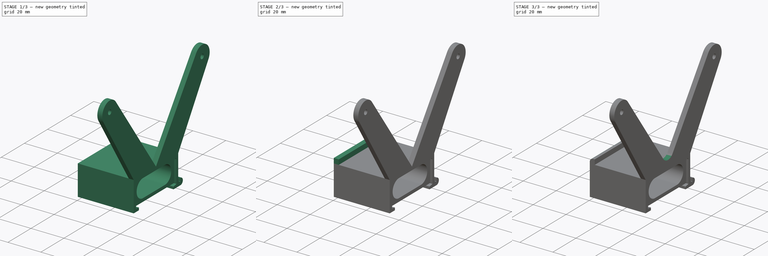
[diagram: build sequence overview — one tinted view per stage of 3, left to right]
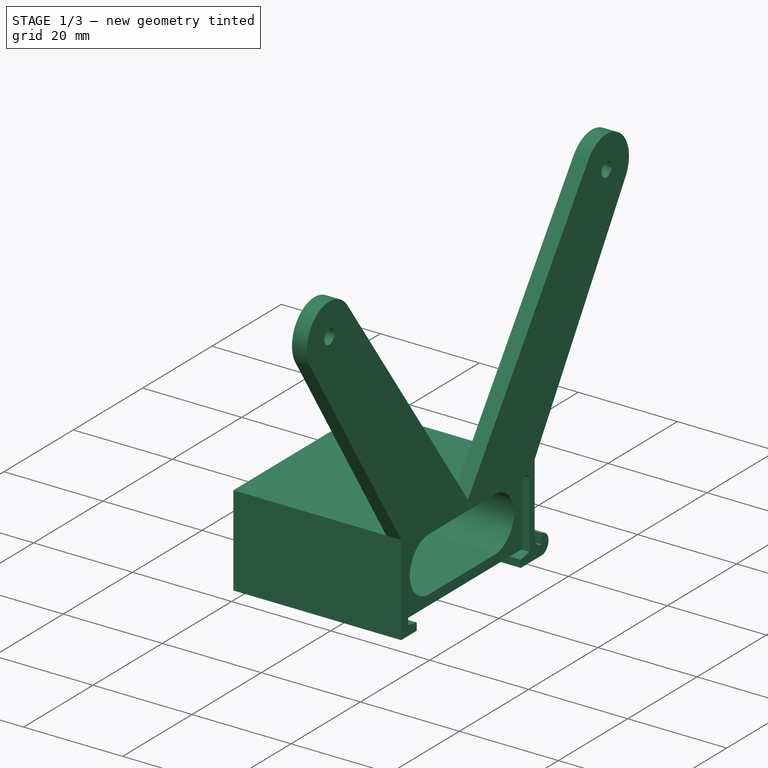
[diagram: stage 1 of 3 — iso view after this stage's code; geometry added in this stage tinted green]
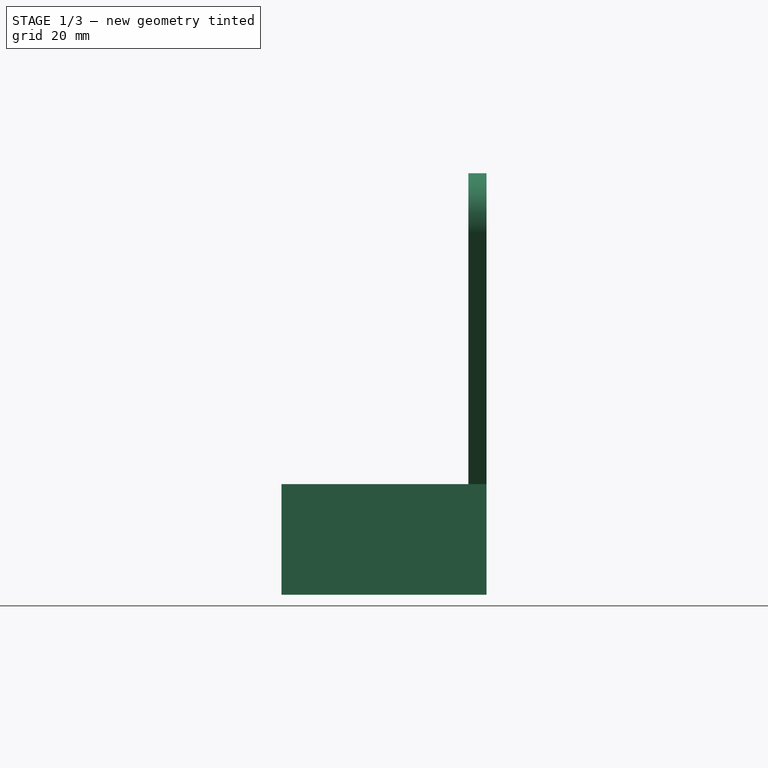
[diagram: stage 1 of 3 — front view after this stage's code; geometry added in this stage tinted green]
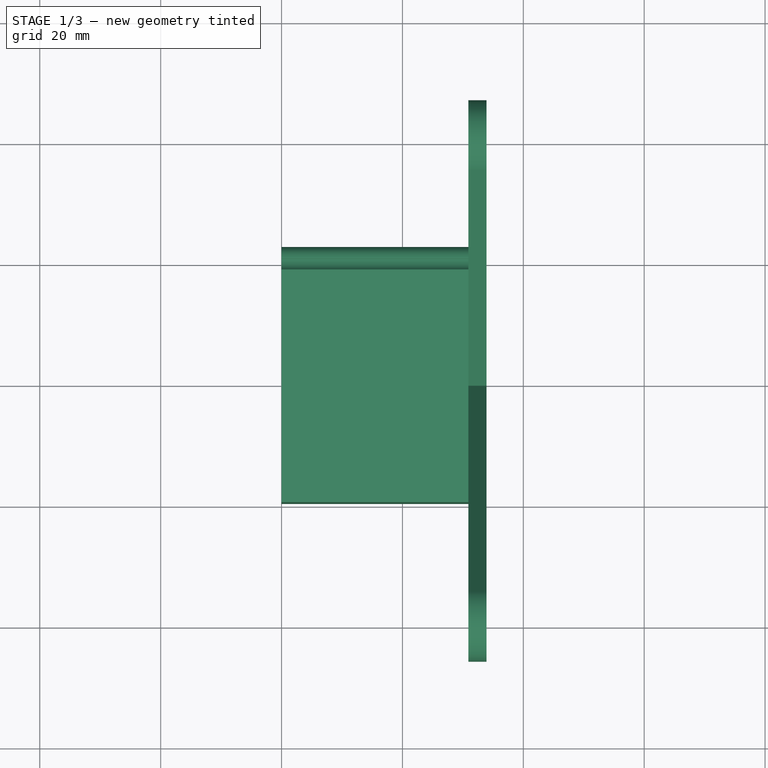
[diagram: stage 1 of 3 — top view after this stage's code; geometry added in this stage tinted green]
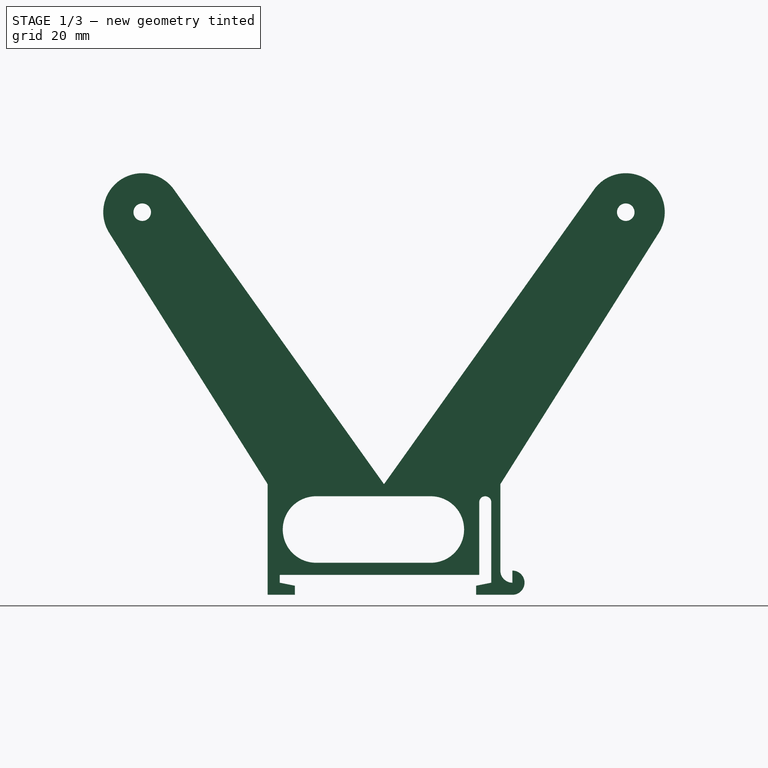
[diagram: stage 1 of 3 — right view after this stage's code; geometry added in this stage tinted green]
FCSTD DOCUMENT  (FreeCAD 0.19R24276 (Git))
Label: DIN Rail holder
License: All rights reserved
LicenseURL: http://en.wikipedia.org/wiki/All_rights_reserved
objects: Sketcher::SketchObject×4, PartDesign::Pad×2, PartDesign::Fillet×2, Spreadsheet::Sheet×1, PartDesign::Pocket×1, PartDesign::Body×1
note: 15 computed .brp shape members not serialized (recipe doc carries the construction recipe); baked Part::Feature solids carry a one-line shape summary decoded from their .brp

FEATURE [Sketcher::SketchObject] Sketch  label="DIN Rail 35"
  FullyConstrained = true
  MapMode = 5
  Placement = pos=(0,0,0) rot=(0.57735,0.57735,0.57735;2.0944rad)
  Support = -> [YZ_Plane]
  sketch-geometry (9):
    g0: LineSegment StartX=-17.5 StartY=0 StartZ=0 EndX=17.5 EndY=0 EndZ=0
    g1: LineSegment StartX=17.5 StartY=0 StartZ=0 EndX=17.5 EndY=-1.5 EndZ=0
    g2: LineSegment StartX=17.5 StartY=-1.5 StartZ=0 EndX=13.5 EndY=-1.5 EndZ=0
    g3: LineSegment StartX=13.5 StartY=-1.5 StartZ=0 EndX=13.5 EndY=-7.5 EndZ=0
    g4: LineSegment StartX=13.5 StartY=-7.5 StartZ=0 EndX=-13.5 EndY=-7.5 EndZ=0
    g5: LineSegment StartX=-13.5 StartY=-7.5 StartZ=0 EndX=-13.5 EndY=-1.5 EndZ=0
    g6: LineSegment StartX=-13.5 StartY=-1.5 StartZ=0 EndX=-17.5 EndY=-1.5 EndZ=0
    g7: LineSegment StartX=-17.5 StartY=-1.5 StartZ=0 EndX=-17.5 EndY=0 EndZ=0
    g8: GeomPoint X=0 Y=0 Z=0
  constraints (24):
    c: Coincident(g0,g1)
    c: Coincident(g1,g2)
    c: Coincident(g2,g3)
    c: Coincident(g3,g4)
    c: Coincident(g4,g5)
    c: Vertical(g5)
    c: Coincident(g5,g6)
    c: Coincident(g6,g7)
    c: Coincident(g7,g0)
    c: Horizontal(g0)
    c: Horizontal(g2)
    c: Horizontal(g6)
    c: Horizontal(g4)
    c: Vertical(g1)
    c: Vertical(g7)
    c: Vertical(g3)
    c: DistanceX(g0,g0) = 35
    c: DistanceX(g4,g4) = 27
    c: DistanceY(g7,g7) = 1.5
    c: Equal(g7,g1)
    c: Equal(g2,g6)
    c: DistanceY(g3,g0) = 7.5
    c: Symmetric(g0,g0,g8)
    c: Coincident(g8,g-1)
FEATURE [Spreadsheet::Sheet] Spreadsheet
  cells = D1=Routerboard 750; E1=HT813; A2=Device thickness; B2(DeviceThickness)=27.5; D2=27.5; E2=27.5; A3=DeviceLipWidth; B3(DeviceLipWidth)=3; D3=3; E3=3; A4=DeviceLipHeight; B4(DeviceLipHeight)=3; D4=4; E4=4; A6=SUPPORT ARM; A7=Support arm thickness; B7(ArmThickness)=3; D7=4; E7=4; A8=PinDiameter; B8(PinDiameter)=2.9; C8=4.6 for M3x4x5 insert nut, 2.5 to 2.9 to directly screw in M3; D8=4.6; E8=2.9; A12=PinFromEdge; B12(PinFromEdge)=45; C12=Distance from rear face to center of pins; D12=45; E12=45; A13=PinDistance; B13(PinDistance)=80; C13=Distance between the pins; D13=70; E13=80; A15=Device thickness plus wiggle; B15(DeviceThicknessPlus)==DeviceThickness + 0.4; C15=0.4 mm wiggle as PLA seems to always be a little bigger than expected; A16=Width; B16(Width)==DeviceThicknessPlus + ArmThickness + DeviceLipWidth
FEATURE [Sketcher::SketchObject] Sketch001  label="Arms"
  FullyConstrained = true
  MapMode = 5
  Placement = pos=(0,0,0) rot=(0.57735,0.57735,0.57735;2.0944rad)
  Support = -> [YZ_Plane]
  expr: Constraints[69] = <<Spreadsheet>>.PinDistance
  expr: Constraints[70] = <<Spreadsheet>>.PinFromEdge
  expr: Constraints[78] = <<Spreadsheet>>.PinDiameter + 10
  expr: Constraints[89] = <<Spreadsheet>>.PinDiameter
  sketch-geometry (39):
    g0: LineSegment StartX=-15 StartY=-3.3 StartZ=0 EndX=-19.5 EndY=-3.3 EndZ=0
    g1: LineSegment StartX=-19.5 StartY=-3.3 StartZ=0 EndX=-19.5 EndY=15 EndZ=0
    g2: LineSegment StartX=19 StartY=15 StartZ=0 EndX=19 EndY=0.7 EndZ=0
    g3: LineSegment StartX=21 StartY=-1.3 StartZ=0 EndX=21 EndY=0.7 EndZ=0
    g4: LineSegment StartX=21 StartY=-3.3 StartZ=0 EndX=15 EndY=-3.3 EndZ=0
    g5: LineSegment StartX=15 StartY=-3.3 StartZ=0 EndX=15 EndY=-1.8 EndZ=0
    g6: LineSegment StartX=15 StartY=-1.8 StartZ=0 EndX=17.5 EndY=-1.3 EndZ=0
    g7: LineSegment StartX=17.5 StartY=-1.3 StartZ=0 EndX=17.5 EndY=0 EndZ=0
    g8: LineSegment StartX=-17.5 StartY=0 StartZ=0 EndX=-17.5 EndY=-1.3 EndZ=0
    g9: LineSegment StartX=-17.5 StartY=-1.3 StartZ=0 EndX=-15 EndY=-1.8 EndZ=0
    g10: LineSegment StartX=-15 StartY=-1.8 StartZ=0 EndX=-15 EndY=-3.3 EndZ=0
    g11: GeomPoint X=0 Y=0 Z=0
    g12: ArcOfCircle CenterX=21 CenterY=0.7 CenterZ=0 NormalX=0 NormalY=0 NormalZ=1 AngleXU=0 Radius=2 StartAngle=3.14159 EndAngle=4.71239
    g13: ArcOfCircle CenterX=21 CenterY=-1.3 CenterZ=0 NormalX=0 NormalY=0 NormalZ=1 AngleXU=0 Radius=2 StartAngle=4.71239 EndAngle=7.85398
    g14: LineSegment StartX=-17.5 StartY=0 StartZ=0 EndX=15.5 EndY=0 EndZ=0
    g15: LineSegment StartX=15.5 StartY=0 StartZ=0 EndX=15.5 EndY=12 EndZ=0
    g16: LineSegment StartX=17.5 StartY=12 StartZ=0 EndX=17.5 EndY=0 EndZ=0
    g17: ArcOfCircle CenterX=16.5 CenterY=12 CenterZ=0 NormalX=0 NormalY=0 NormalZ=1 AngleXU=0 Radius=1 StartAngle=0 EndAngle=3.14159
    g18: ArcOfCircle CenterX=-11.5 CenterY=7.5 CenterZ=0 NormalX=0 NormalY=0 NormalZ=1 AngleXU=0 Radius=5.5 StartAngle=1.5708 EndAngle=4.71239
    g19: ArcOfCircle CenterX=7.5 CenterY=7.5 CenterZ=0 NormalX=0 NormalY=0 NormalZ=1 AngleXU=0 Radius=5.5 StartAngle=4.71239 EndAngle=7.85398
    g20: LineSegment StartX=-11.5 StartY=2 StartZ=0 EndX=7.5 EndY=2 EndZ=0
    g21: LineSegment StartX=-11.5 StartY=13 StartZ=0 EndX=7.5 EndY=13 EndZ=0
    g22: LineSegment StartX=-19.5 StartY=15 StartZ=0 EndX=-45.5961 EndY=56.3914 EndZ=0
    g23: LineSegment StartX=-45.5961 StartY=56.3914 StartZ=0 EndX=-34.9039 EndY=63.6086 EndZ=0
    g24: LineSegment StartX=-34.9039 StartY=63.6086 StartZ=0 EndX=-0.25 EndY=15 EndZ=0
    g25: LineSegment StartX=-0.25 StartY=15 StartZ=0 EndX=34.4039 EndY=63.6086 EndZ=0
    g26: LineSegment StartX=45.0961 StartY=56.3914 StartZ=0 EndX=19 EndY=15 EndZ=0
    g27: Circle CenterX=-40.25 CenterY=60 CenterZ=0 NormalX=0 NormalY=0 NormalZ=1 AngleXU=0 Radius=1.45
    g28: Circle CenterX=39.75 CenterY=60 CenterZ=0 NormalX=0 NormalY=0 NormalZ=1 AngleXU=0 Radius=1.45
    g29: LineSegment StartX=34.4039 StartY=63.6086 StartZ=0 EndX=45.0961 EndY=56.3914 EndZ=0
    g30: GeomPoint X=39.75 Y=60 Z=0
    g31: ArcOfCircle CenterX=39.75 CenterY=60 CenterZ=0 NormalX=0 NormalY=0 NormalZ=1 AngleXU=0 Radius=6.45 StartAngle=5.68944 EndAngle=8.83103
    g32: GeomPoint X=-40.25 Y=60 Z=0
    g33: ArcOfCircle CenterX=-40.25 CenterY=60 CenterZ=0 NormalX=0 NormalY=0 NormalZ=1 AngleXU=0 Radius=6.45 StartAngle=0.59375 EndAngle=3.73534
    g34: LineSegment StartX=-19.5 StartY=15 StartZ=0 EndX=19 EndY=15 EndZ=0
    g35: LineSegment StartX=-40.25 StartY=60 StartZ=0 EndX=39.75 EndY=60 EndZ=0
    g36: GeomPoint X=-0.25 Y=60 Z=0
    g37: LineSegment StartX=-9.875 StartY=15 StartZ=0 EndX=-40.25 EndY=60 EndZ=0
    g38: LineSegment StartX=39.75 StartY=60 StartZ=0 EndX=9.375 EndY=15 EndZ=0
  constraints (101):
    c: Horizontal(g0)
    c: Coincident(g0,g1)
    c: Vertical(g1)
    c: Vertical(g2)
    c: Vertical(g3)
    c: Horizontal(g4)
    c: Coincident(g4,g5)
    c: Vertical(g5)
    c: Coincident(g5,g6)
    c: Coincident(g6,g7)
    c: Vertical(g7)
    c: Vertical(g8)
    c: Coincident(g8,g9)
    c: Coincident(g9,g10)
    c: Coincident(g10,g0)
    c: Vertical(g10)
    c: DistanceY(g8,g8) = 1.3
    c: Equal(g7,g8)
    c: DistanceY(g10,g10) = 1.5
    c: DistanceY(g9,g8) = 0.5
    c: Equal(g5,g10)
    c: Horizontal(g4,g0)
    c: DistanceX(g0,g8) = 2
    c: DistanceX(g8,g7) = 35
    c: Symmetric(g7,g8,g11)
    c: Coincident(g11,g-1)
    c: DistanceX(g8,g9) = 2.5
    c: Equal(g9,g6)
    c: Tangent(g2,g12) = -1.5708
    c: Vertical(g4,g3)
    c: Coincident(g13,g3)
    c: Coincident(g13,g4)
    c: Radius(g13) = 2
    c: Coincident(g3,g12)
    c: DistanceY(g4,g3) = 2
    c: DistanceX(g7,g2) = 1.5
    c: DistanceX(g2,g3) = 2
    c: DistanceY(g3,g2) = 2
    c: Coincident(g8,g14)
    c: PointOnObject(g14,g-1)
    c: Horizontal(g14)
    c: Coincident(g14,g15)
    c: Vertical(g15)
    c: Coincident(g16,g7)
    c: Vertical(g16)
    c: DistanceY(g15,g15) = 12
    c: Coincident(g17,g15)
    c: Coincident(g17,g16)
    c: Radius(g17) = 1
    c: Horizontal(g16,g15)
    c: Horizontal(g16,g17)
    c: Vertical(g13,g3)
    c: DistanceY(g16,g2) = 3
    c: Tangent(g18,g21) = 1.5708
    c: Tangent(g18,g20) = -1.5708
    c: Tangent(g20,g19) = -1.5708
    c: Tangent(g21,g19) = 1.5708
    c: Horizontal(g20)
    c: Equal(g18,g19)
    c: DistanceY(g18,g1) = 2
    c: DistanceY(g8,g18) = 2
    c: DistanceX(g1,g18) = 8
    c: DistanceX(g19,g15) = 8
    c: Coincident(g1,g22)
    c: Coincident(g22,g23)
    c: Coincident(g23,g24)
    c: Coincident(g24,g25)
    c: Coincident(g26,g2)
    c: Horizontal(g27,g28)
    c: DistanceX(g27,g28) = 80
    c: DistanceY(g2,g28) = 45
    c: Coincident(g29,g25)
    c: Coincident(g29,g26)
    c: Symmetric(g29,g29,g30)
    c: Coincident(g31,g30)
    c: Coincident(g31,g25)
    c: Coincident(g31,g26)
    c: Coincident(g28,g31)
    c: Diameter(g31) = 12.9
    c: Symmetric(g23,g23,g32)
    c: Coincident(g32,g27)
    c: Coincident(g33,g27)
    c: Coincident(g33,g22)
    c: Coincident(g33,g24)
    c: Coincident(g34,g1)
    c: Coincident(g34,g2)
    c: Horizontal(g34)
    c: Symmetric(g34,g34,g24)
    c: Equal(g31,g33)
    c: Diameter(g27) = 2.9
    c: Equal(g27,g28)
    c: Coincident(g35,g27)
    c: Coincident(g35,g28)
    c: Vertical(g36,g24)
    c: Symmetric(g35,g35,g36)
    c: Coincident(g37,g27)
    c: Symmetric(g24,g1,g37)
    c: Angle(g37,g23) = 1.5708
    c: Coincident(g38,g28)
    c: Symmetric(g24,g2,g38)
    c: Angle(g38,g29) = 1.5708
FEATURE [PartDesign::Pad] Pad
  Direction = (1,1,1)
  Length = 33.9
  Length2 = 100
  Placement = pos=(0,0,0) rot=(0.57735,0.57735,0.57735;2.0944rad)
  Profile = -> Sketch001
  Type = 0
  expr: Length = <<Spreadsheet>>.Width
FEATURE [Sketcher::SketchObject] Sketch002  label="Pocket arms to width"
  ExternalGeometry = -> [Pad]
  FullyConstrained = true
  MapMode = 5
  Placement = pos=(-6.7e-15,0,0) rot=(0.57735,0.57735,-0.57735;4.18879rad)
  Support = -> [Pad]
  sketch-geometry (5):
    g0: LineSegment StartX=-81 StartY=-15 StartZ=0 EndX=119 EndY=-15 EndZ=0
    g1: LineSegment StartX=119 StartY=-15 StartZ=0 EndX=119 EndY=-95 EndZ=0
    g2: LineSegment StartX=119 StartY=-95 StartZ=0 EndX=-81 EndY=-95 EndZ=0
    g3: LineSegment StartX=-81 StartY=-95 StartZ=0 EndX=-81 EndY=-15 EndZ=0
    g4: GeomPoint X=19 Y=-15 Z=0
  constraints (12):
    c: Coincident(g0,g1)
    c: Coincident(g1,g2)
    c: Coincident(g2,g3)
    c: Coincident(g3,g0)
    c: Horizontal(g0)
    c: Horizontal(g2)
    c: Vertical(g1)
    c: Vertical(g3)
    c: DistanceX(g2,g2) = 200
    c: DistanceY(g1,g1) = 80
    c: Symmetric(g0,g0,g4)
    c: Coincident(g4,g-3)
FEATURE [PartDesign::Pocket] Pocket
  BaseFeature = -> Pad
  Length = 30.9
  Length2 = 100
  Placement = pos=(0,0,0) rot=(0.57735,0.57735,0.57735;2.0944rad)
  Profile = -> Sketch002
  Type = 0
  expr: Length = <<Spreadsheet>>.DeviceThicknessPlus + Spreadsheet.DeviceLipWidth
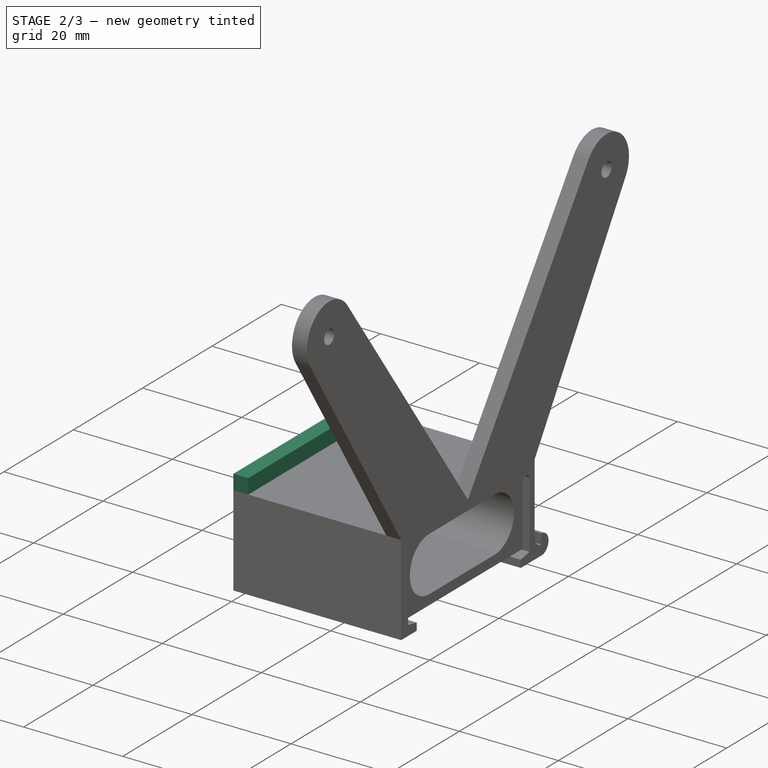
[diagram: stage 2 of 3 — iso view after this stage's code; geometry added in this stage tinted green]
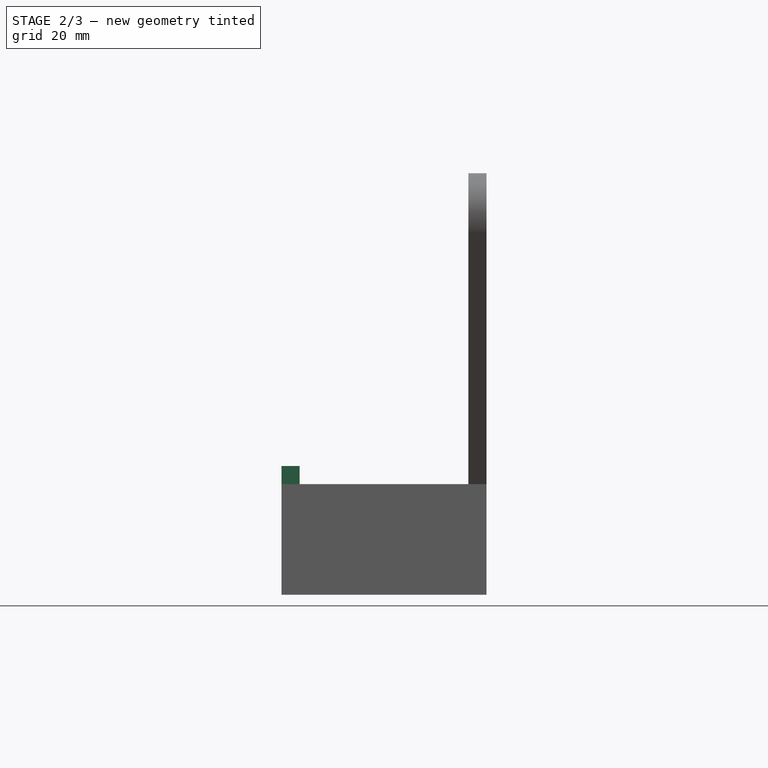
[diagram: stage 2 of 3 — front view after this stage's code; geometry added in this stage tinted green]
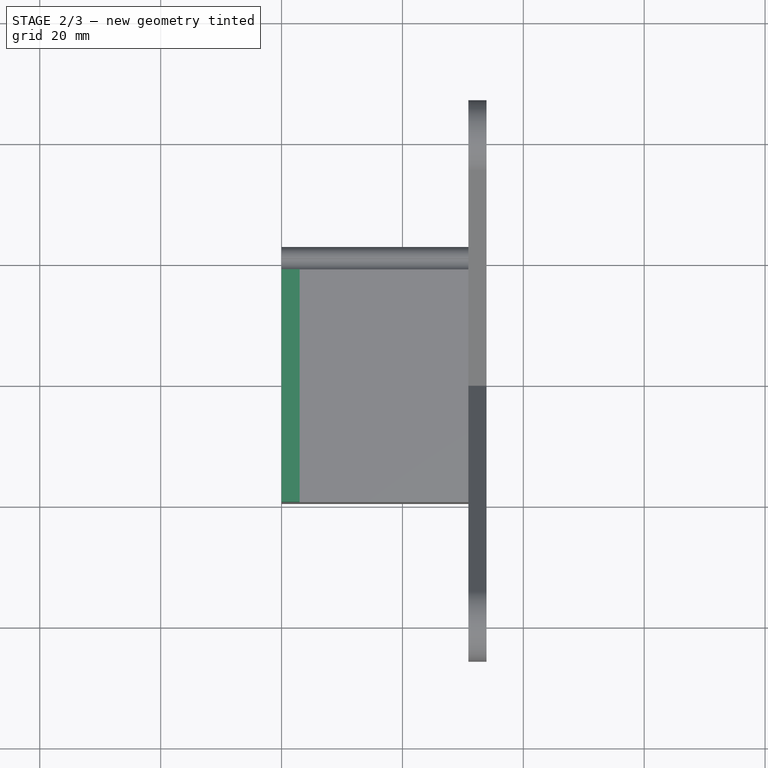
[diagram: stage 2 of 3 — top view after this stage's code; geometry added in this stage tinted green]
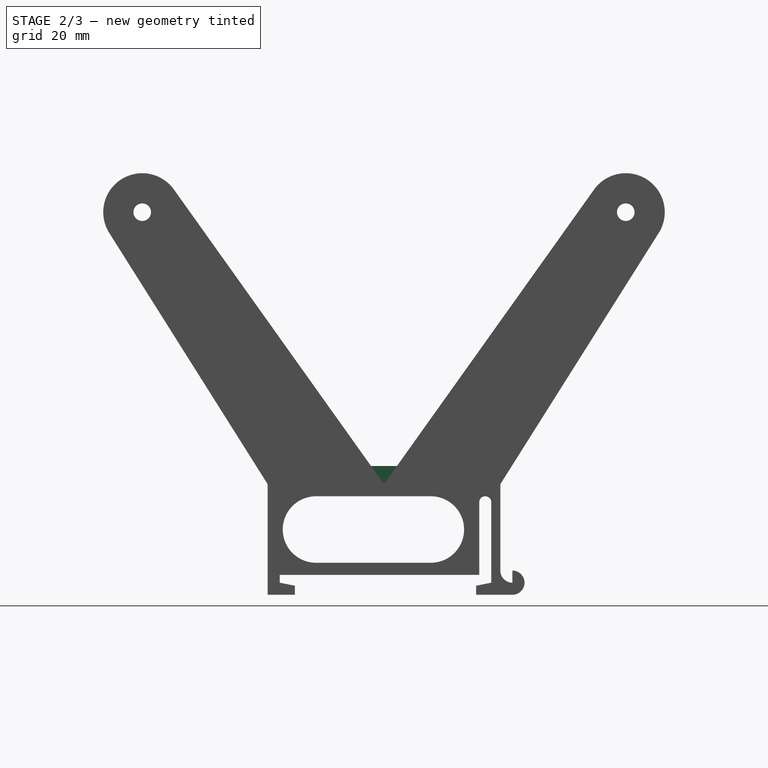
[diagram: stage 2 of 3 — right view after this stage's code; geometry added in this stage tinted green]
FEATURE [Sketcher::SketchObject] Sketch003  label="Device rim"
  ExternalGeometry = -> [Pocket]
  FullyConstrained = true
  MapMode = 5
  Placement = pos=(-8.3e-15,5e-15,15) rot=(0,0,-1;1.5708rad)
  Support = -> [Pocket]
  expr: Constraints[7] = Spreadsheet.DeviceLipWidth
  sketch-geometry (4):
    g0: LineSegment StartX=-19 StartY=3 StartZ=0 EndX=19.5 EndY=3 EndZ=0
    g1: LineSegment StartX=19.5 StartY=3 StartZ=0 EndX=19.5 EndY=-4.9e-15 EndZ=0
    g2: LineSegment StartX=19.5 StartY=-4.9e-15 StartZ=0 EndX=-19 EndY=-3.8e-15 EndZ=0
    g3: LineSegment StartX=-19 StartY=-3.8e-15 StartZ=0 EndX=-19 EndY=3 EndZ=0
  constraints (10):
    c: Coincident(g0,g1)
    c: Coincident(g1,g2)
    c: Coincident(g2,g3)
    c: Coincident(g3,g0)
    c: Horizontal(g0)
    c: Vertical(g1)
    c: Vertical(g3)
    c: DistanceY(g1,g1) = 3
    c: Coincident(g1,g-4)
    c: Coincident(g2,g-3)
FEATURE [PartDesign::Pad] Pad001
  BaseFeature = -> Pocket
  Direction = (1,1,1)
  Length = 3
  Length2 = 100
  Placement = pos=(0,0,0) rot=(0.57735,0.57735,0.57735;2.0944rad)
  Profile = -> Sketch003
  Type = 0
  expr: Length = Spreadsheet.DeviceLipHeight
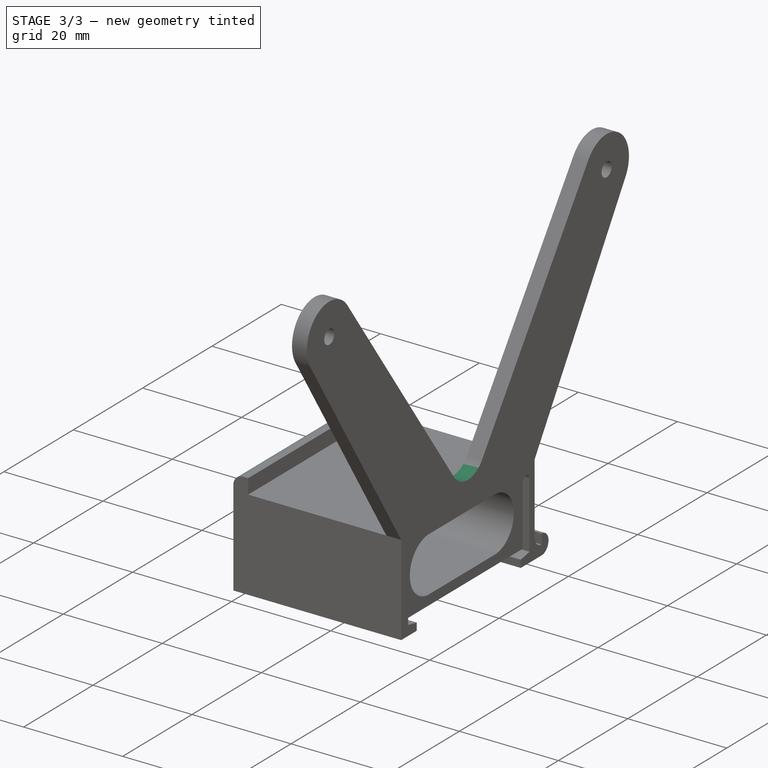
[diagram: stage 3 of 3 — iso view after this stage's code; geometry added in this stage tinted green]
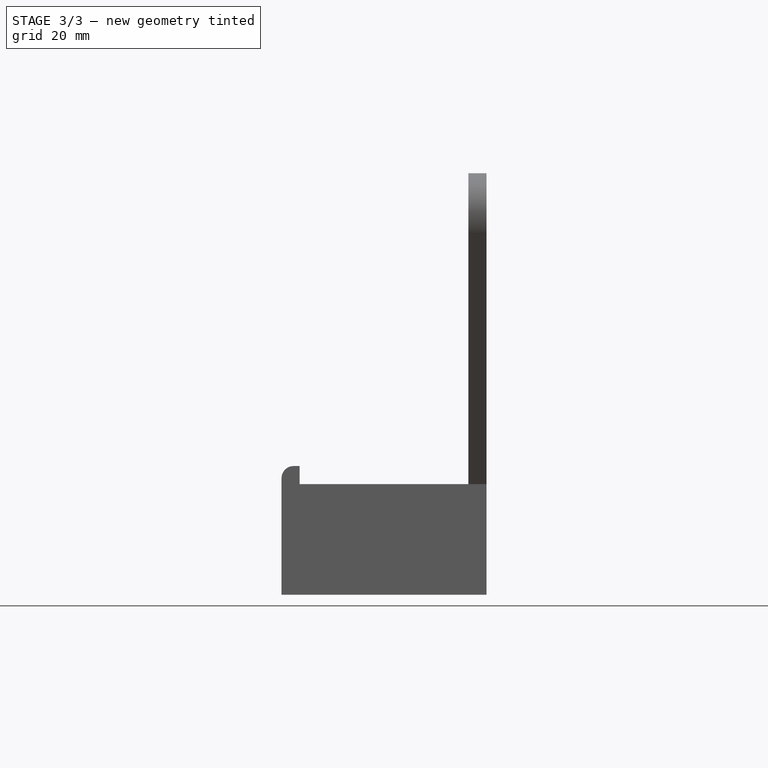
[diagram: stage 3 of 3 — front view after this stage's code; geometry added in this stage tinted green]
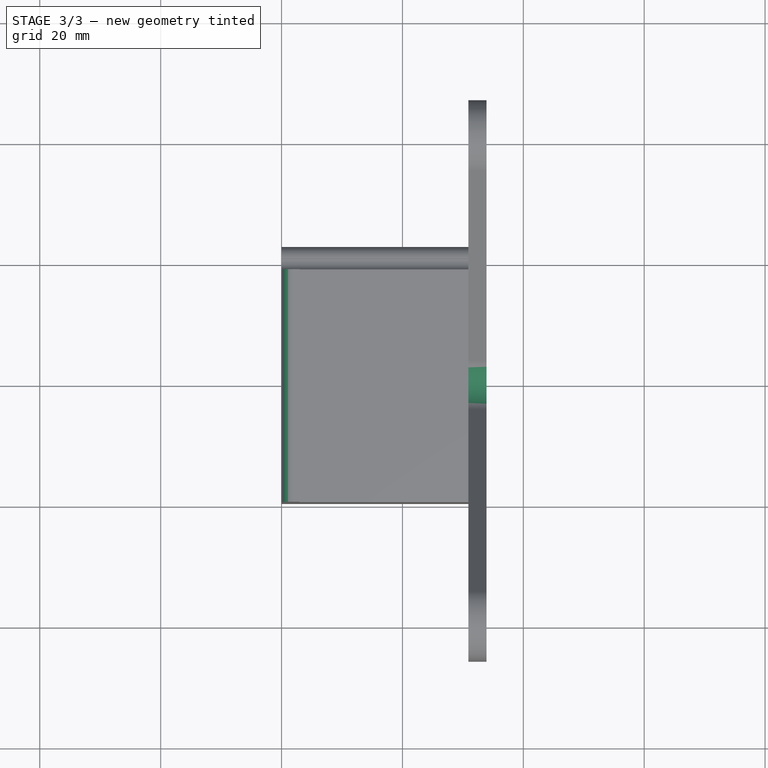
[diagram: stage 3 of 3 — top view after this stage's code; geometry added in this stage tinted green]
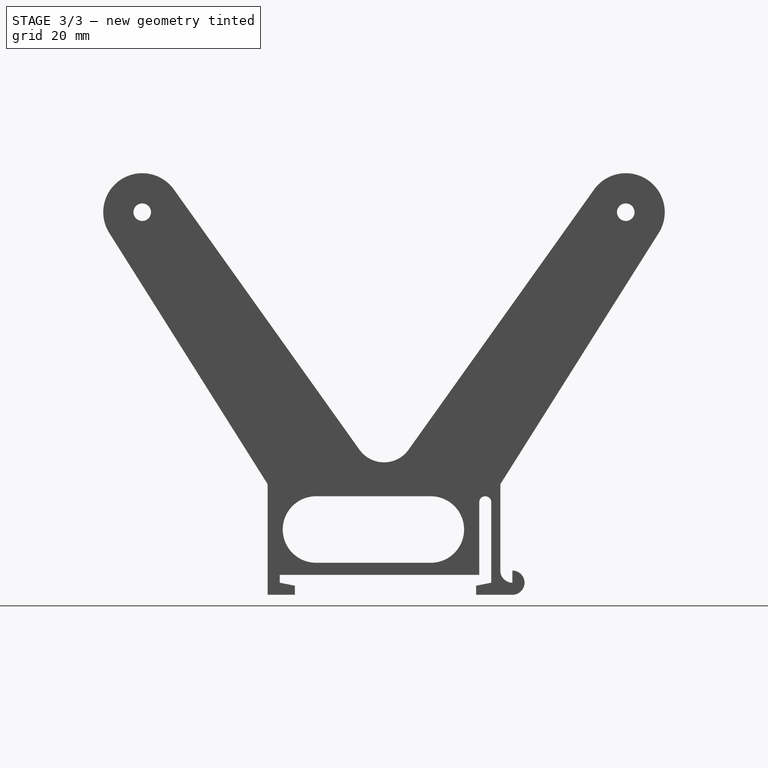
[diagram: stage 3 of 3 — right view after this stage's code; geometry added in this stage tinted green]
FEATURE [PartDesign::Fillet] Fillet  label="Device rim fillet"
  Base = -> Pad001 [Edge73]
  BaseFeature = -> Pad001
  Placement = pos=(0,0,0) rot=(0.57735,0.57735,0.57735;2.0944rad)
  Radius = 2
  SupportTransform = false
  expr: Radius = Spreadsheet.DeviceLipWidth - 1
FEATURE [PartDesign::Fillet] Fillet001  label="Between arms"
  Base = -> Fillet [Edge103]
  BaseFeature = -> Fillet
  Placement = pos=(0,0,0) rot=(0.57735,0.57735,0.57735;2.0944rad)
  Radius = 5
  SupportTransform = false
FEATURE [PartDesign::Body] Body
  Group = -> [Sketch,Sketch001,Pad,Sketch002,Pocket,Sketch003,Pad001,Fillet,Fillet001]
  Origin = -> Origin
  Tip = -> Fillet001
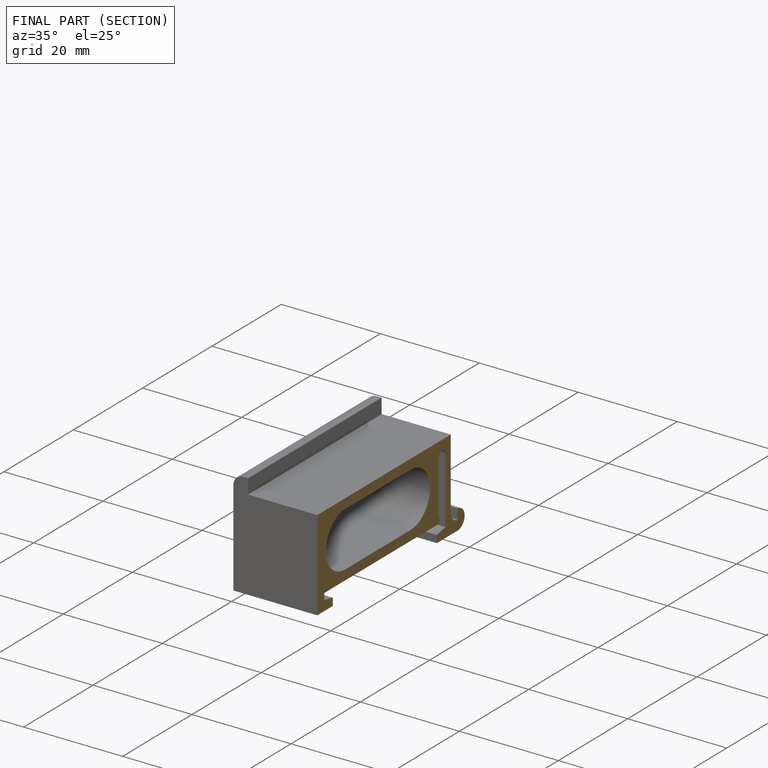
[diagram: finished part — half-section view (interior)]
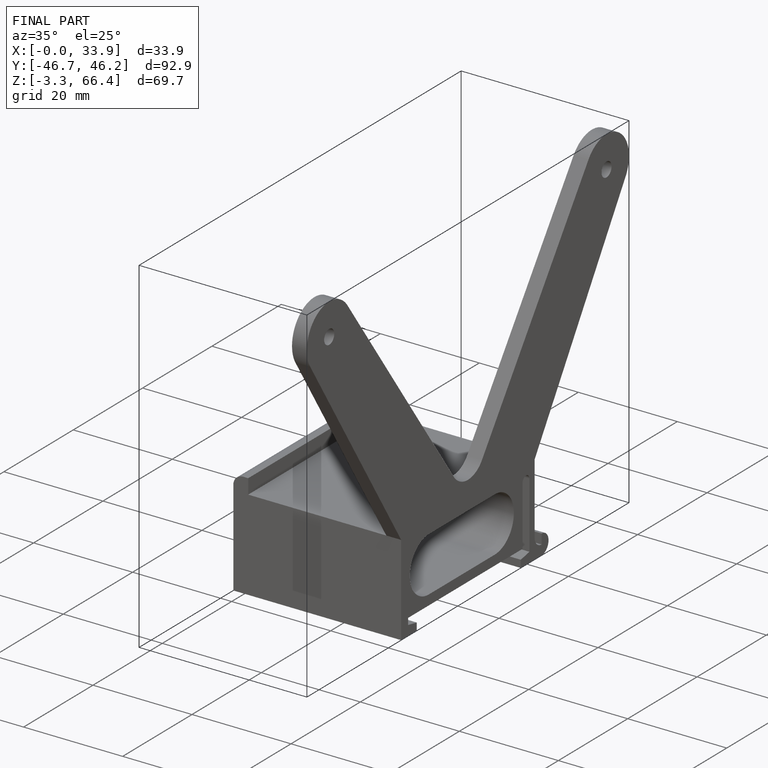
[diagram: finished part — iso view with bounding-box wireframe]
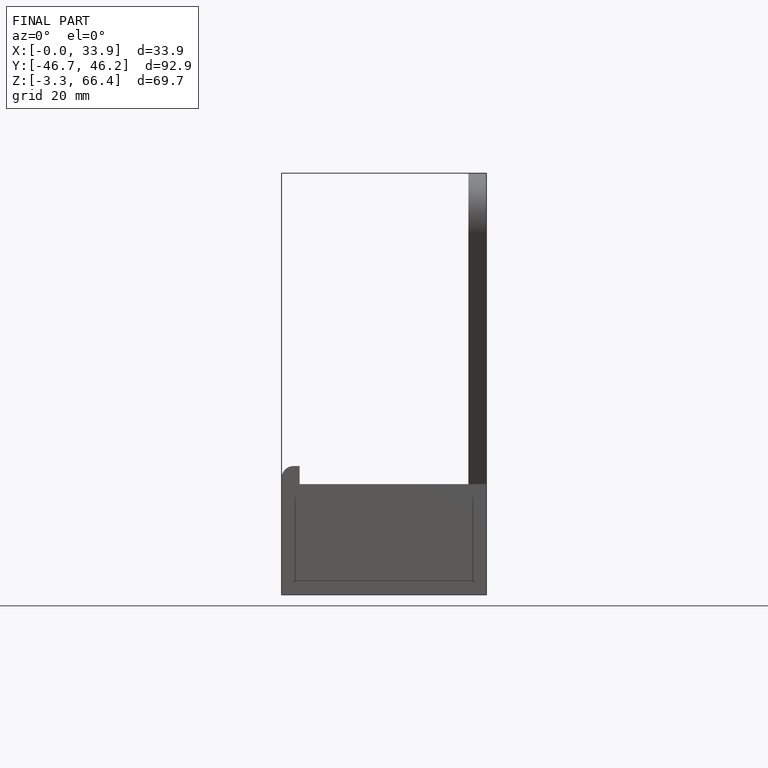
[diagram: finished part — front view with bounding-box wireframe]
